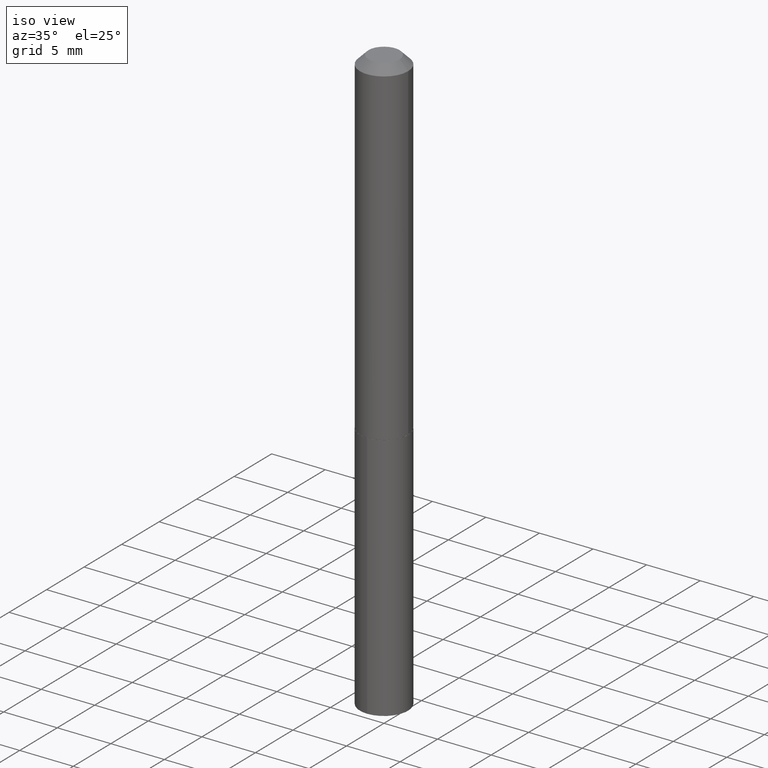
[diagram: clean part render]
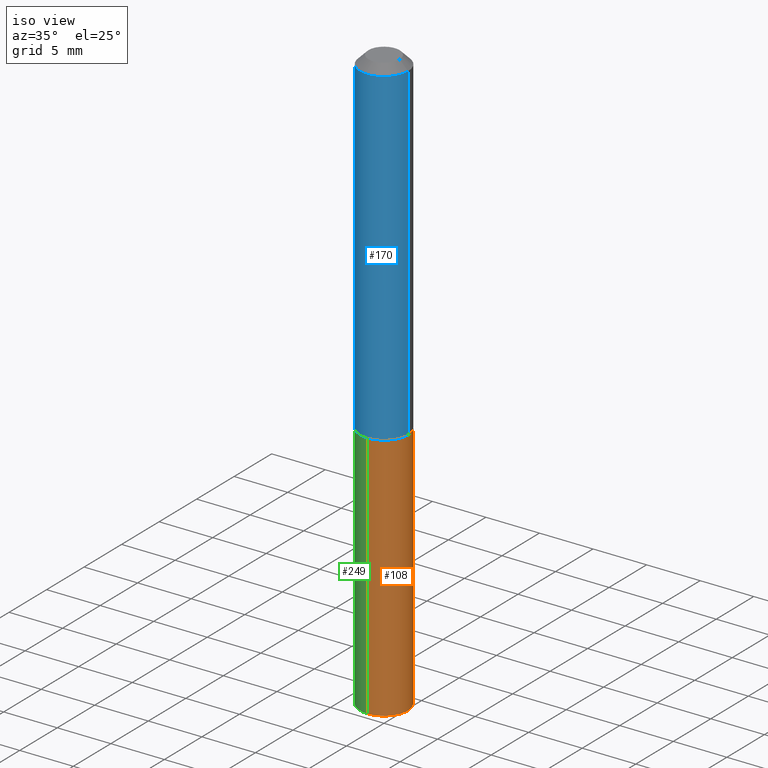
[diagram: same view with three faces highlighted in distinct colors, each labeled with its STEP entity id]
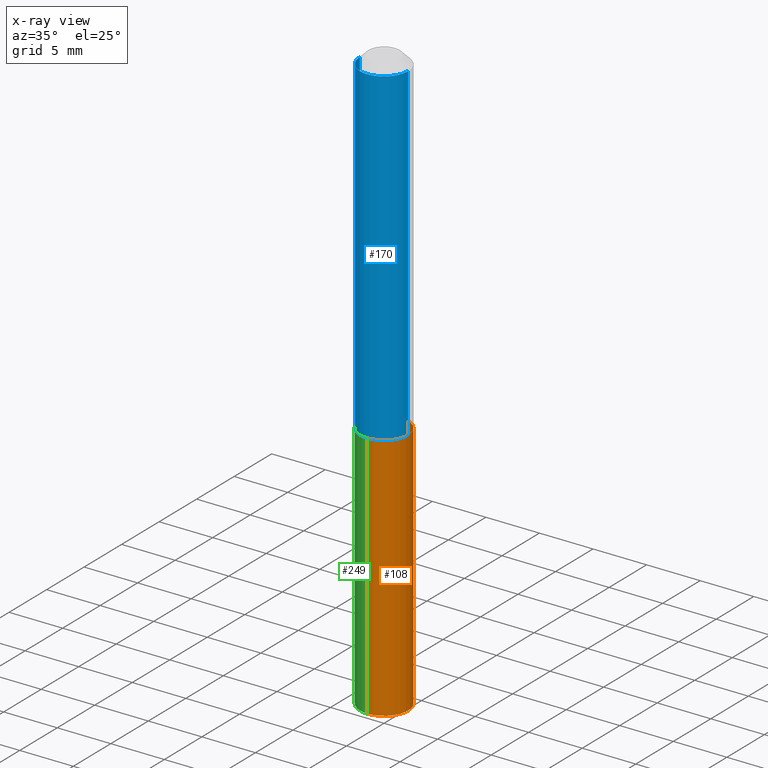
[diagram: x-ray of the same camera — body ghosted, the three highlighted faces saturated]
A machine part, iso view with three faces highlighted in distinct colors.
The next image is the same camera in x-ray (body ghosted, the three faces saturated) — at least one of them is partly hidden behind the body in this view.
Their STEP definitions:

[orange] entity #108 — the highlighted cylindrical surface (edge-blend (fillet) strip) has radius 2.2479 mm, axis along (-0, 0, 1).
#7 = CARTESIAN_POINT ( 'NONE',  ( 3.031158585266477520E-29, -4.327691119496080108E-15, -1.239500000000000268 ) ) ;
#25 = CARTESIAN_POINT ( 'NONE',  ( 3.031158585266477520E-29, -4.327691119496080108E-15, -1.239500000000000268 ) ) ;
#33 = EDGE_CURVE ( 'NONE', #156, #280, #65, .T. ) ;
#34 = CARTESIAN_POINT ( 'NONE',  ( 6.288303211477413864E-16, 0.08849999999999247358, -2.155288634267441772 ) ) ;
#65 = CIRCLE ( 'NONE', #325, 0.08849999999999999534 ) ;
#79 = CARTESIAN_POINT ( 'NONE',  ( 5.270605855897176758E-29, -7.525272154320466255E-15, -2.155288634267441772 ) ) ;
#84 = FACE_OUTER_BOUND ( 'NONE', #256, .T. ) ;
#85 = DIRECTION ( 'NONE',  ( -2.445375697878234343E-29, 3.491614675238025267E-15, 1.000000000000000000 ) ) ;
#95 = DIRECTION ( 'NONE',  ( -2.445375697878234343E-29, 3.491614675238025267E-15, 1.000000000000000000 ) ) ;
#108 = ADVANCED_FACE ( 'NONE', ( #84 ), #382, .T. ) ;
#110 = CARTESIAN_POINT ( 'NONE',  ( 6.288303211477413864E-16, 0.08849999999999566547, -1.239500000000000490 ) ) ;
#112 = EDGE_CURVE ( 'NONE', #280, #160, #230, .T. ) ;
#113 = DIRECTION ( 'NONE',  ( -6.982962677686266711E-15, -1.000000000000000000, 3.086833891146060475E-15 ) ) ;
#116 = VECTOR ( 'NONE', #341, 39.37007874015748143 ) ;
#130 = ORIENTED_EDGE ( 'NONE', *, *, #33, .T. ) ;
#135 = AXIS2_PLACEMENT_3D ( 'NONE', #7, #95, #113 ) ;
#136 = DIRECTION ( 'NONE',  ( -2.445375697878234343E-29, 3.491614675238025267E-15, 1.000000000000000000 ) ) ;
#147 = ORIENTED_EDGE ( 'NONE', *, *, #238, .F. ) ;
#154 = LINE ( 'NONE', #246, #116 ) ;
#156 = VERTEX_POINT ( 'NONE', #178 ) ;
#158 = VERTEX_POINT ( 'NONE', #297 ) ;
#160 = VERTEX_POINT ( 'NONE', #110 ) ;
#178 = CARTESIAN_POINT ( 'NONE',  ( -6.179921969751820894E-16, -0.08850000000000755873, -2.155288634267441328 ) ) ;
#196 = ORIENTED_EDGE ( 'NONE', *, *, #112, .T. ) ;
#198 = DIRECTION ( 'NONE',  ( -6.982962677686266711E-15, -1.000000000000000000, 3.086833891146060475E-15 ) ) ;
#230 = LINE ( 'NONE', #385, #301 ) ;
#235 = AXIS2_PLACEMENT_3D ( 'NONE', #25, #136, #198 ) ;
#238 = EDGE_CURVE ( 'NONE', #156, #158, #154, .T. ) ;
#246 = CARTESIAN_POINT ( 'NONE',  ( -6.179921969752041775E-16, -0.08850000000000431133, -1.239500000000000046 ) ) ;
#255 = ORIENTED_EDGE ( 'NONE', *, *, #319, .F. ) ;
#256 = EDGE_LOOP ( 'NONE', ( #130, #196, #255, #147 ) ) ;
#257 = DIRECTION ( 'NONE',  ( -2.445375697878234063E-29, 3.491614675238025661E-15, 1.000000000000000000 ) ) ;
#264 = CIRCLE ( 'NONE', #135, 0.08849999999999999534 ) ;
#280 = VERTEX_POINT ( 'NONE', #34 ) ;
#287 = DIRECTION ( 'NONE',  ( -6.982962677686266711E-15, -1.000000000000000000, 3.086833891146060475E-15 ) ) ;
#297 = CARTESIAN_POINT ( 'NONE',  ( -6.179921969752041775E-16, -0.08850000000000431133, -1.239500000000000046 ) ) ;
#301 = VECTOR ( 'NONE', #257, 39.37007874015748143 ) ;
#319 = EDGE_CURVE ( 'NONE', #158, #160, #264, .T. ) ;
#325 = AXIS2_PLACEMENT_3D ( 'NONE', #79, #85, #287 ) ;
#341 = DIRECTION ( 'NONE',  ( -2.445375697878234063E-29, 3.491614675238025661E-15, 1.000000000000000000 ) ) ;
#382 = CYLINDRICAL_SURFACE ( 'NONE', #235, 0.08849999999999999534 ) ;
#385 = CARTESIAN_POINT ( 'NONE',  ( 6.288303211477188053E-16, 0.08849999999999566547, -1.239500000000000490 ) ) ;

[blue] entity #170 — the highlighted cylindrical surface (edge-blend (fillet) strip) has radius 2.2479 mm, axis along (-0, 0, 1).
#6 = CARTESIAN_POINT ( 'NONE',  ( 7.642090019328602662E-31, -1.091087918388490267E-16, -0.03125000000000020817 ) ) ;
#13 = LINE ( 'NONE', #157, #26 ) ;
#24 = CIRCLE ( 'NONE', #288, 0.08849999999999999534 ) ;
#26 = VECTOR ( 'NONE', #365, 39.37007874015748143 ) ;
#32 = CARTESIAN_POINT ( 'NONE',  ( 0.08850000000000013411, -4.943937575801893744E-15, -1.239000000000000323 ) ) ;
#39 = VERTEX_POINT ( 'NONE', #142 ) ;
#45 = EDGE_CURVE ( 'NONE', #215, #39, #24, .T. ) ;
#57 = FACE_OUTER_BOUND ( 'NONE', #314, .T. ) ;
#58 = DIRECTION ( 'NONE',  ( 1.000000000000000000, -6.982962677686266711E-15, 0.000000000000000000 ) ) ;
#68 = CARTESIAN_POINT ( 'NONE',  ( -0.08850000000000013411, -3.697115057678968987E-15, -1.239000000000000323 ) ) ;
#72 = AXIS2_PLACEMENT_3D ( 'NONE', #349, #132, #239 ) ;
#76 = DIRECTION ( 'NONE',  ( -2.445468806185136597E-29, 3.491481338843145583E-15, 1.000000000000000000 ) ) ;
#83 = AXIS2_PLACEMENT_3D ( 'NONE', #330, #76, #165 ) ;
#132 = DIRECTION ( 'NONE',  ( -2.445468806185136597E-29, 3.491481338843145583E-15, 1.000000000000000000 ) ) ;
#142 = CARTESIAN_POINT ( 'NONE',  ( 0.08849999999999999534, -7.271009888140835507E-16, -0.03125000000000020817 ) ) ;
#157 = CARTESIAN_POINT ( 'NONE',  ( 0.08850000000000006473, -6.179921969752350417E-16, 4.315416446579406428E-30 ) ) ;
#165 = DIRECTION ( 'NONE',  ( 1.000000000000000000, -6.982962677686266711E-15, 4.876176775795935793E-29 ) ) ;
#168 = EDGE_CURVE ( 'NONE', #247, #218, #295, .T. ) ;
#170 = ADVANCED_FACE ( 'NONE', ( #57 ), #269, .T. ) ;
#177 = ORIENTED_EDGE ( 'NONE', *, *, #324, .T. ) ;
#191 = ORIENTED_EDGE ( 'NONE', *, *, #354, .F. ) ;
#211 = DIRECTION ( 'NONE',  ( -2.445468806185136877E-29, 3.491481338843145188E-15, 1.000000000000000000 ) ) ;
#215 = VERTEX_POINT ( 'NONE', #332 ) ;
#218 = VERTEX_POINT ( 'NONE', #32 ) ;
#222 = ORIENTED_EDGE ( 'NONE', *, *, #45, .F. ) ;
#239 = DIRECTION ( 'NONE',  ( 1.000000000000000000, -6.982962677686261977E-15, 0.000000000000000000 ) ) ;
#247 = VERTEX_POINT ( 'NONE', #68 ) ;
#248 = CARTESIAN_POINT ( 'NONE',  ( -0.08850000000000006473, 6.288303211476891244E-16, -4.353257554875594652E-30 ) ) ;
#269 = CYLINDRICAL_SURFACE ( 'NONE', #83, 0.08850000000000006473 ) ;
#275 = LINE ( 'NONE', #248, #348 ) ;
#288 = AXIS2_PLACEMENT_3D ( 'NONE', #6, #296, #58 ) ;
#295 = CIRCLE ( 'NONE', #72, 0.08850000000000013411 ) ;
#296 = DIRECTION ( 'NONE',  ( -2.445468806185136597E-29, 3.491481338843145583E-15, 1.000000000000000000 ) ) ;
#310 = ORIENTED_EDGE ( 'NONE', *, *, #168, .T. ) ;
#314 = EDGE_LOOP ( 'NONE', ( #191, #310, #177, #222 ) ) ;
#324 = EDGE_CURVE ( 'NONE', #218, #39, #13, .T. ) ;
#330 = CARTESIAN_POINT ( 'NONE',  ( 0.000000000000000000, 0.000000000000000000, 0.000000000000000000 ) ) ;
#332 = CARTESIAN_POINT ( 'NONE',  ( -0.08849999999999999534, -1.588696764185064235E-15, -0.03125000000000020817 ) ) ;
#348 = VECTOR ( 'NONE', #211, 39.37007874015748143 ) ;
#349 = CARTESIAN_POINT ( 'NONE',  ( 3.029935850863385279E-29, -4.325945378826658604E-15, -1.239000000000000323 ) ) ;
#354 = EDGE_CURVE ( 'NONE', #247, #215, #275, .T. ) ;
#365 = DIRECTION ( 'NONE',  ( -2.445468806185136877E-29, 3.491481338843145188E-15, 1.000000000000000000 ) ) ;

[green] entity #249 — the highlighted cylindrical surface (edge-blend (fillet) strip) has radius 2.2479 mm, axis along (-0, 0, 1).
#8 = FACE_OUTER_BOUND ( 'NONE', #64, .T. ) ;
#18 = ORIENTED_EDGE ( 'NONE', *, *, #238, .T. ) ;
#31 = CARTESIAN_POINT ( 'NONE',  ( 3.031158585266477520E-29, -4.327691119496080108E-15, -1.239500000000000268 ) ) ;
#34 = CARTESIAN_POINT ( 'NONE',  ( 6.288303211477413864E-16, 0.08849999999999247358, -2.155288634267441772 ) ) ;
#38 = DIRECTION ( 'NONE',  ( -6.982962677686266711E-15, -1.000000000000000000, 3.086833891146060475E-15 ) ) ;
#64 = EDGE_LOOP ( 'NONE', ( #375, #118, #18, #69 ) ) ;
#69 = ORIENTED_EDGE ( 'NONE', *, *, #182, .F. ) ;
#110 = CARTESIAN_POINT ( 'NONE',  ( 6.288303211477413864E-16, 0.08849999999999566547, -1.239500000000000490 ) ) ;
#112 = EDGE_CURVE ( 'NONE', #280, #160, #230, .T. ) ;
#116 = VECTOR ( 'NONE', #341, 39.37007874015748143 ) ;
#117 = DIRECTION ( 'NONE',  ( -2.445375697878234343E-29, 3.491614675238025267E-15, 1.000000000000000000 ) ) ;
#118 = ORIENTED_EDGE ( 'NONE', *, *, #234, .T. ) ;
#119 = CYLINDRICAL_SURFACE ( 'NONE', #228, 0.08849999999999999534 ) ;
#151 = CARTESIAN_POINT ( 'NONE',  ( 3.031158585266477520E-29, -4.327691119496080108E-15, -1.239500000000000268 ) ) ;
#154 = LINE ( 'NONE', #246, #116 ) ;
#156 = VERTEX_POINT ( 'NONE', #178 ) ;
#158 = VERTEX_POINT ( 'NONE', #297 ) ;
#160 = VERTEX_POINT ( 'NONE', #110 ) ;
#178 = CARTESIAN_POINT ( 'NONE',  ( -6.179921969751820894E-16, -0.08850000000000755873, -2.155288634267441328 ) ) ;
#181 = DIRECTION ( 'NONE',  ( -6.982962677686266711E-15, -1.000000000000000000, 3.086833891146060475E-15 ) ) ;
#182 = EDGE_CURVE ( 'NONE', #160, #158, #388, .T. ) ;
#213 = CARTESIAN_POINT ( 'NONE',  ( 5.270605855897176758E-29, -7.525272154320466255E-15, -2.155288634267441772 ) ) ;
#228 = AXIS2_PLACEMENT_3D ( 'NONE', #151, #271, #38 ) ;
#230 = LINE ( 'NONE', #385, #301 ) ;
#234 = EDGE_CURVE ( 'NONE', #280, #156, #326, .T. ) ;
#238 = EDGE_CURVE ( 'NONE', #156, #158, #154, .T. ) ;
#246 = CARTESIAN_POINT ( 'NONE',  ( -6.179921969752041775E-16, -0.08850000000000431133, -1.239500000000000046 ) ) ;
#249 = ADVANCED_FACE ( 'NONE', ( #8 ), #119, .T. ) ;
#257 = DIRECTION ( 'NONE',  ( -2.445375697878234063E-29, 3.491614675238025661E-15, 1.000000000000000000 ) ) ;
#271 = DIRECTION ( 'NONE',  ( -2.445375697878234343E-29, 3.491614675238025267E-15, 1.000000000000000000 ) ) ;
#274 = AXIS2_PLACEMENT_3D ( 'NONE', #31, #117, #278 ) ;
#278 = DIRECTION ( 'NONE',  ( -6.982962677686266711E-15, -1.000000000000000000, 3.086833891146060475E-15 ) ) ;
#280 = VERTEX_POINT ( 'NONE', #34 ) ;
#281 = AXIS2_PLACEMENT_3D ( 'NONE', #213, #305, #181 ) ;
#297 = CARTESIAN_POINT ( 'NONE',  ( -6.179921969752041775E-16, -0.08850000000000431133, -1.239500000000000046 ) ) ;
#301 = VECTOR ( 'NONE', #257, 39.37007874015748143 ) ;
#305 = DIRECTION ( 'NONE',  ( -2.445375697878234343E-29, 3.491614675238025267E-15, 1.000000000000000000 ) ) ;
#326 = CIRCLE ( 'NONE', #281, 0.08849999999999999534 ) ;
#341 = DIRECTION ( 'NONE',  ( -2.445375697878234063E-29, 3.491614675238025661E-15, 1.000000000000000000 ) ) ;
#375 = ORIENTED_EDGE ( 'NONE', *, *, #112, .F. ) ;
#385 = CARTESIAN_POINT ( 'NONE',  ( 6.288303211477188053E-16, 0.08849999999999566547, -1.239500000000000490 ) ) ;
#388 = CIRCLE ( 'NONE', #274, 0.08849999999999999534 ) ;